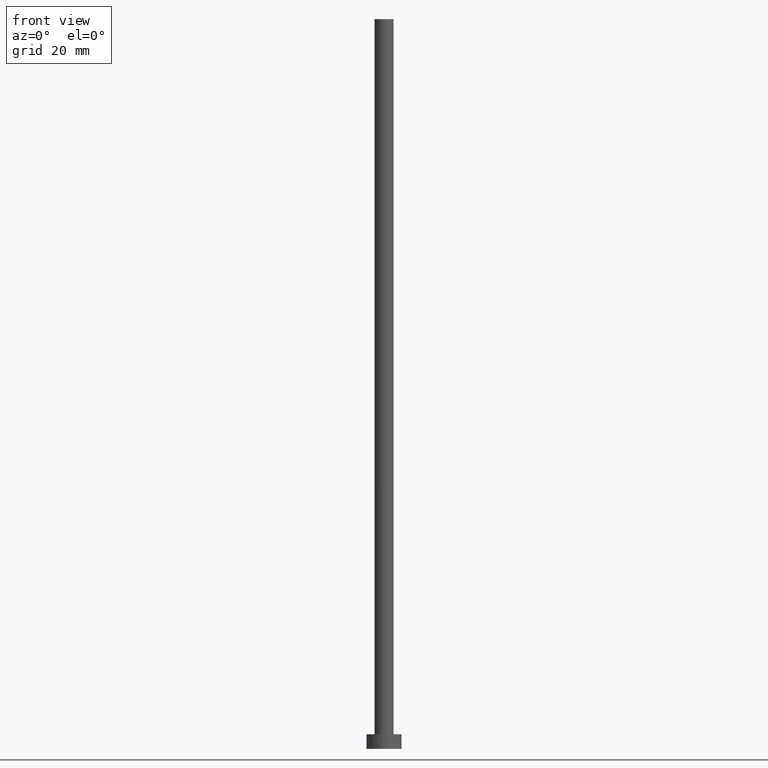
[diagram: clean part render]
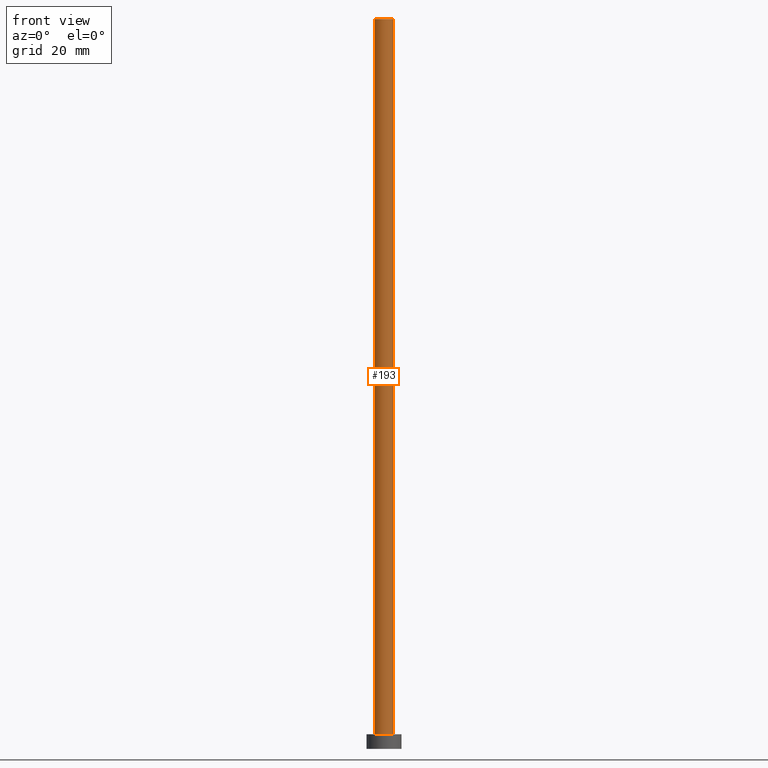
[diagram: same view with one face highlighted and labeled with its STEP entity id]
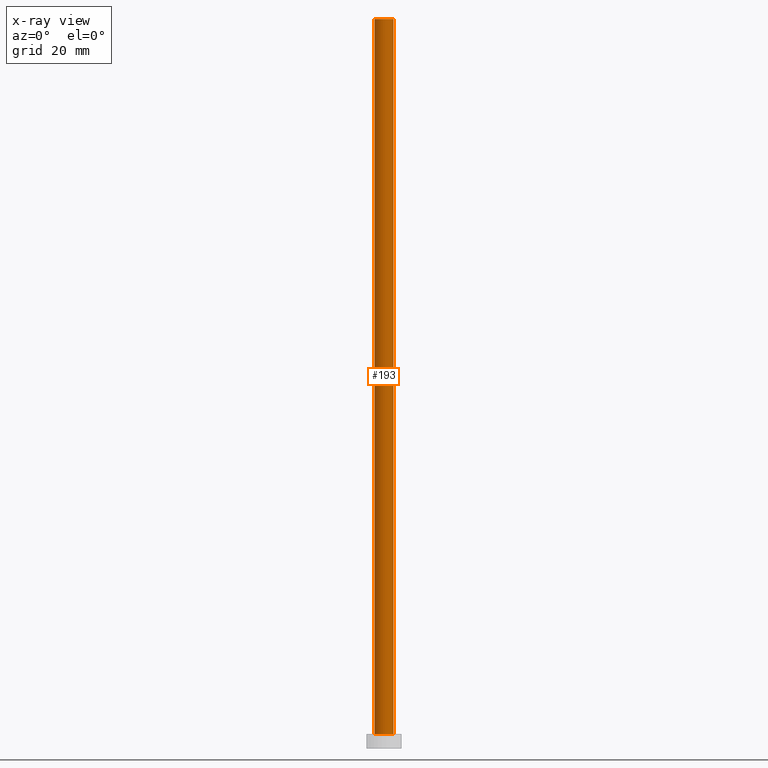
[diagram: x-ray of the same camera — body ghosted, the highlighted face saturated]
A machine part, front view. The second image highlights one B-rep face of the part: STEP entity #193.
The next image is the same camera in x-ray: the body ghosted, the highlighted face saturated — about 0% of this face is hidden behind the body in this view.
In plain terms, the highlighted cylindrical surface (edge-blend (fillet) strip) has radius 3.25 mm, axis along (-0, -0, -1).
Its self-contained STEP definition (entity closure, byte-faithful):
#11 = CIRCLE ( 'NONE', #17, 3.250000000000000444 ) ;
#17 = AXIS2_PLACEMENT_3D ( 'NONE', #123, #237, #144 ) ;
#21 = DIRECTION ( 'NONE',  ( -1.000000000000000000, 0.000000000000000000, 0.000000000000000000 ) ) ;
#22 = DIRECTION ( 'NONE',  ( -0.000000000000000000, -0.000000000000000000, -1.000000000000000000 ) ) ;
#24 = DIRECTION ( 'NONE',  ( 0.000000000000000000, 0.000000000000000000, 1.000000000000000000 ) ) ;
#29 = EDGE_CURVE ( 'NONE', #253, #219, #11, .T. ) ;
#38 = EDGE_CURVE ( 'NONE', #199, #233, #189, .T. ) ;
#42 = LINE ( 'NONE', #98, #115 ) ;
#45 = CARTESIAN_POINT ( 'NONE',  ( 0.000000000000000000, 0.000000000000000000, 250.0000000000000000 ) ) ;
#48 = CARTESIAN_POINT ( 'NONE',  ( -3.250000000000000444, 0.000000000000000000, 250.0000000000000000 ) ) ;
#62 = CARTESIAN_POINT ( 'NONE',  ( -3.250000000000000444, 0.000000000000000000, 250.0000000000000000 ) ) ;
#67 = CARTESIAN_POINT ( 'NONE',  ( 3.250000000000000444, 3.980102097228898231E-16, 250.0000000000000000 ) ) ;
#77 = AXIS2_PLACEMENT_3D ( 'NONE', #220, #24, #218 ) ;
#82 = VECTOR ( 'NONE', #120, 1000.000000000000000 ) ;
#98 = CARTESIAN_POINT ( 'NONE',  ( 3.250000000000000444, 3.980102097228898231E-16, 250.0000000000000000 ) ) ;
#113 = ORIENTED_EDGE ( 'NONE', *, *, #225, .T. ) ;
#115 = VECTOR ( 'NONE', #22, 1000.000000000000000 ) ;
#116 = EDGE_LOOP ( 'NONE', ( #229, #250, #113, #119 ) ) ;
#119 = ORIENTED_EDGE ( 'NONE', *, *, #38, .T. ) ;
#120 = DIRECTION ( 'NONE',  ( -0.000000000000000000, -0.000000000000000000, -1.000000000000000000 ) ) ;
#123 = CARTESIAN_POINT ( 'NONE',  ( 0.000000000000000000, 0.000000000000000000, 250.0000000000000000 ) ) ;
#140 = FACE_OUTER_BOUND ( 'NONE', #116, .T. ) ;
#143 = DIRECTION ( 'NONE',  ( -0.000000000000000000, -0.000000000000000000, -1.000000000000000000 ) ) ;
#144 = DIRECTION ( 'NONE',  ( 1.000000000000000000, 0.000000000000000000, 0.000000000000000000 ) ) ;
#161 = CARTESIAN_POINT ( 'NONE',  ( -3.250000000000000444, 0.000000000000000000, 5.000000000000000000 ) ) ;
#189 = CIRCLE ( 'NONE', #77, 3.250000000000000444 ) ;
#193 = ADVANCED_FACE ( 'NONE', ( #140 ), #216, .T. ) ;
#194 = AXIS2_PLACEMENT_3D ( 'NONE', #45, #143, #21 ) ;
#199 = VERTEX_POINT ( 'NONE', #161 ) ;
#201 = CARTESIAN_POINT ( 'NONE',  ( 3.250000000000000444, 3.980102097228898231E-16, 5.000000000000000000 ) ) ;
#216 = CYLINDRICAL_SURFACE ( 'NONE', #194, 3.250000000000000444 ) ;
#218 = DIRECTION ( 'NONE',  ( 1.000000000000000000, 0.000000000000000000, 0.000000000000000000 ) ) ;
#219 = VERTEX_POINT ( 'NONE', #67 ) ;
#220 = CARTESIAN_POINT ( 'NONE',  ( 0.000000000000000000, 0.000000000000000000, 5.000000000000000000 ) ) ;
#225 = EDGE_CURVE ( 'NONE', #253, #199, #234, .T. ) ;
#229 = ORIENTED_EDGE ( 'NONE', *, *, #232, .F. ) ;
#232 = EDGE_CURVE ( 'NONE', #219, #233, #42, .T. ) ;
#233 = VERTEX_POINT ( 'NONE', #201 ) ;
#234 = LINE ( 'NONE', #48, #82 ) ;
#237 = DIRECTION ( 'NONE',  ( 0.000000000000000000, 0.000000000000000000, 1.000000000000000000 ) ) ;
#250 = ORIENTED_EDGE ( 'NONE', *, *, #29, .F. ) ;
#253 = VERTEX_POINT ( 'NONE', #62 ) ;